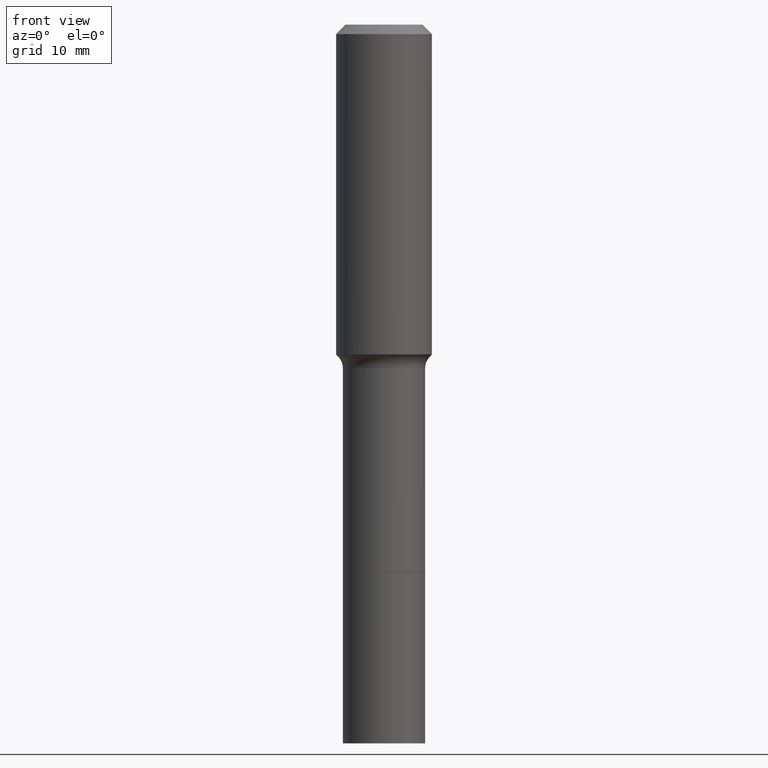
[diagram: clean part render]
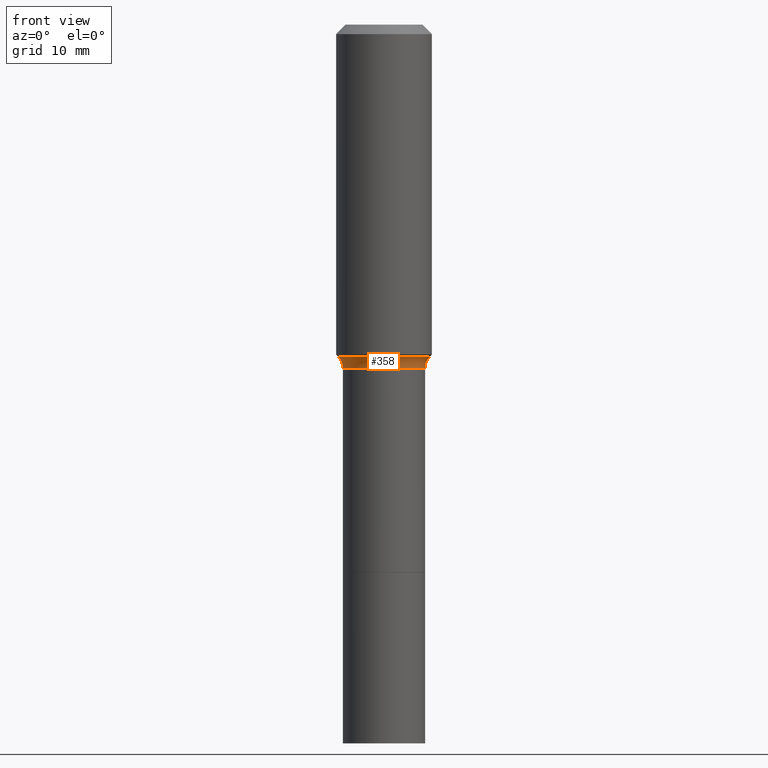
[diagram: same view with one face highlighted and labeled with its STEP entity id]
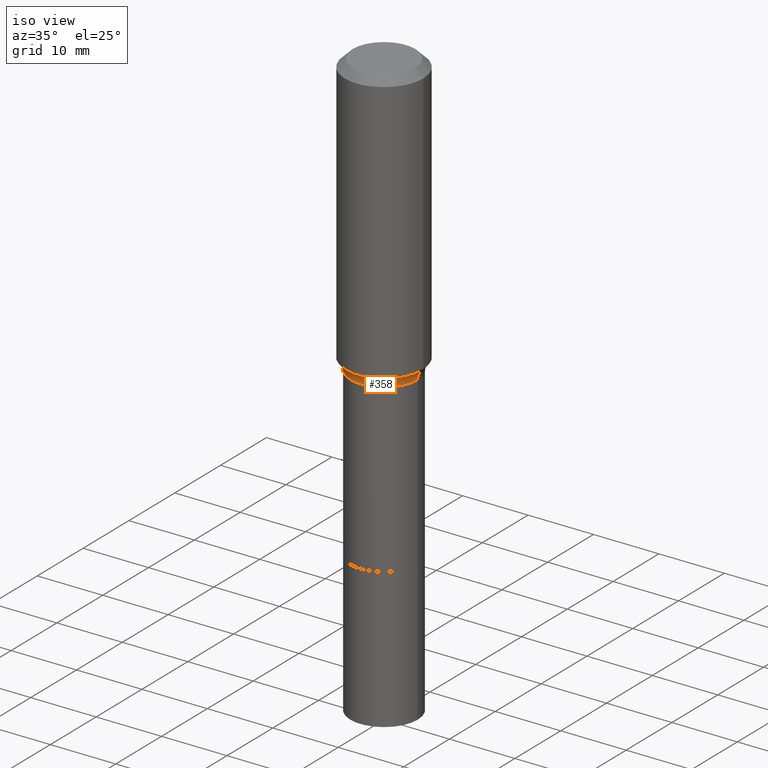
[diagram: same view with one face highlighted and labeled with its STEP entity id]
A machine part, front view. The second image highlights one B-rep face of the part: STEP entity #358.
A second angle (iso view) of the same face is appended — the face is thin or edge-on in the first view.
In plain terms, the highlighted toroidal blend (fillet) surface has major radius 7.1818 mm and minor (blend) radius 2.032 mm.
Its self-contained STEP definition (entity closure, byte-faithful):
#7 = EDGE_CURVE ( 'NONE', #128, #73, #65, .T. ) ;
#33 = CARTESIAN_POINT ( 'NONE',  ( 4.140912329513291253E-29, -5.912125351063097489E-15, -1.693299999999999583 ) ) ;
#65 = CIRCLE ( 'NONE', #353, 0.2242417038704663801 ) ;
#66 = CARTESIAN_POINT ( 'NONE',  ( 4.140912329513291253E-29, -5.912125351063097489E-15, -1.693299999999999583 ) ) ;
#73 = VERTEX_POINT ( 'NONE', #216 ) ;
#77 = CIRCLE ( 'NONE', #132, 0.07999999999999996003 ) ;
#89 = ORIENTED_EDGE ( 'NONE', *, *, #264, .F. ) ;
#98 = DIRECTION ( 'NONE',  ( -2.445468806185136597E-29, 3.491481338843145583E-15, 1.000000000000000000 ) ) ;
#128 = VERTEX_POINT ( 'NONE', #170 ) ;
#132 = AXIS2_PLACEMENT_3D ( 'NONE', #172, #405, #372 ) ;
#156 = EDGE_CURVE ( 'NONE', #359, #444, #475, .T. ) ;
#162 = ORIENTED_EDGE ( 'NONE', *, *, #156, .T. ) ;
#165 = CARTESIAN_POINT ( 'NONE',  ( 0.2827499999999999458, -7.886558048178889023E-15, -1.693299999999999583 ) ) ;
#170 = CARTESIAN_POINT ( 'NONE',  ( -0.2242417038704663246, -4.128297449884435935E-15, -1.638740131194999838 ) ) ;
#172 = CARTESIAN_POINT ( 'NONE',  ( -0.2827499999999999458, -3.903065765701414598E-15, -1.693299999999999583 ) ) ;
#177 = CARTESIAN_POINT ( 'NONE',  ( 4.007487872281110361E-29, -5.721630587280709429E-15, -1.638740131194999838 ) ) ;
#183 = CARTESIAN_POINT ( 'NONE',  ( -0.2027499999999998748, -6.228587938082306830E-15, -1.693299999999999583 ) ) ;
#212 = EDGE_CURVE ( 'NONE', #128, #359, #77, .T. ) ;
#214 = AXIS2_PLACEMENT_3D ( 'NONE', #66, #98, #305 ) ;
#216 = CARTESIAN_POINT ( 'NONE',  ( 0.2242417038704663246, -7.287502036188952833E-15, -1.638740131194999838 ) ) ;
#244 = ORIENTED_EDGE ( 'NONE', *, *, #212, .T. ) ;
#264 = EDGE_CURVE ( 'NONE', #73, #444, #499, .T. ) ;
#267 = DIRECTION ( 'NONE',  ( 1.000000000000000000, -6.982962677686266711E-15, 0.000000000000000000 ) ) ;
#305 = DIRECTION ( 'NONE',  ( 1.000000000000000000, -6.982962677686268288E-15, 4.883557194083112901E-29 ) ) ;
#331 = ORIENTED_EDGE ( 'NONE', *, *, #7, .F. ) ;
#344 = DIRECTION ( 'NONE',  ( -6.982962677686266711E-15, -1.000000000000000000, 3.491481338843145583E-15 ) ) ;
#345 = AXIS2_PLACEMENT_3D ( 'NONE', #165, #344, #421 ) ;
#353 = AXIS2_PLACEMENT_3D ( 'NONE', #177, #413, #376 ) ;
#358 = ADVANCED_FACE ( 'NONE', ( #462 ), #415, .F. ) ;
#359 = VERTEX_POINT ( 'NONE', #183 ) ;
#372 = DIRECTION ( 'NONE',  ( -1.000000000000000000, 7.105427357601001859E-15, 0.000000000000000000 ) ) ;
#376 = DIRECTION ( 'NONE',  ( 1.000000000000000000, -6.982962677686265133E-15, 0.000000000000000000 ) ) ;
#405 = DIRECTION ( 'NONE',  ( 7.105427357601001859E-15, 1.000000000000000000, -3.491481338843145583E-15 ) ) ;
#413 = DIRECTION ( 'NONE',  ( -2.445468806185136597E-29, 3.491481338843145583E-15, 1.000000000000000000 ) ) ;
#415 = TOROIDAL_SURFACE ( 'NONE', #214, 0.2827499999999999458, 0.07999999999999996003 ) ;
#419 = CARTESIAN_POINT ( 'NONE',  ( 0.2027499999999998748, -7.327921033963987370E-15, -1.693299999999999583 ) ) ;
#421 = DIRECTION ( 'NONE',  ( 1.000000000000000000, -6.982962677686262766E-15, 0.000000000000000000 ) ) ;
#444 = VERTEX_POINT ( 'NONE', #419 ) ;
#462 = FACE_OUTER_BOUND ( 'NONE', #474, .T. ) ;
#473 = DIRECTION ( 'NONE',  ( -2.445468806185136597E-29, 3.491481338843145583E-15, 1.000000000000000000 ) ) ;
#474 = EDGE_LOOP ( 'NONE', ( #331, #244, #162, #89 ) ) ;
#475 = CIRCLE ( 'NONE', #492, 0.2027499999999998748 ) ;
#492 = AXIS2_PLACEMENT_3D ( 'NONE', #33, #473, #267 ) ;
#499 = CIRCLE ( 'NONE', #345, 0.07999999999999996003 ) ;